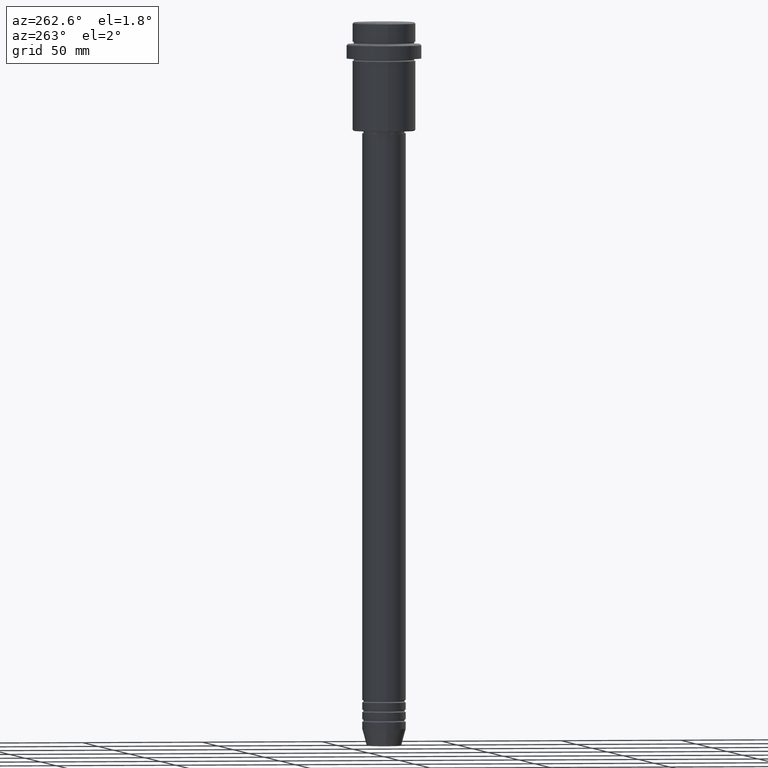
[diagram: clean part render]
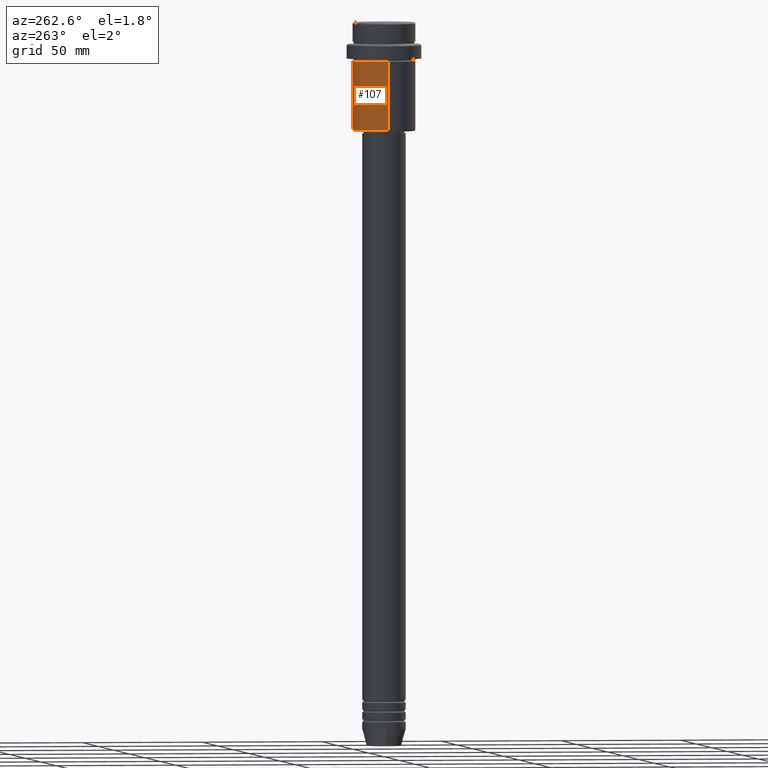
[diagram: same view with one face highlighted and labeled with its STEP entity id]
A machine part, auxiliary view. The second image highlights one B-rep face of the part: STEP entity #107.
In plain terms, the highlighted cylindrical surface (edge-blend (fillet) strip) has radius 13 mm, axis along (-0, -0, 1).
Its self-contained STEP definition (entity closure, byte-faithful):
#16 = CARTESIAN_POINT ( 'NONE',  ( -13.00000000000000000, 1.592040838891559095E-15, -16.00000000000000000 ) ) ;
#28 = EDGE_CURVE ( 'NONE', #1379, #694, #1183, .T. ) ;
#50 = CIRCLE ( 'NONE', #234, 13.00000000000000000 ) ;
#79 = ORIENTED_EDGE ( 'NONE', *, *, #127, .T. ) ;
#107 = ADVANCED_FACE ( 'NONE', ( #1415 ), #769, .T. ) ;
#127 = EDGE_CURVE ( 'NONE', #1379, #299, #50, .T. ) ;
#200 = CARTESIAN_POINT ( 'NONE',  ( 0.000000000000000000, 0.000000000000000000, -44.50000000000002842 ) ) ;
#228 = DIRECTION ( 'NONE',  ( -0.000000000000000000, -0.000000000000000000, 1.000000000000000000 ) ) ;
#234 = AXIS2_PLACEMENT_3D ( 'NONE', #200, #303, #296 ) ;
#296 = DIRECTION ( 'NONE',  ( -1.000000000000000000, 0.000000000000000000, 0.000000000000000000 ) ) ;
#299 = VERTEX_POINT ( 'NONE', #1392 ) ;
#303 = DIRECTION ( 'NONE',  ( -0.000000000000000000, -0.000000000000000000, 1.000000000000000000 ) ) ;
#365 = VERTEX_POINT ( 'NONE', #16 ) ;
#506 = DIRECTION ( 'NONE',  ( -0.000000000000000000, -0.000000000000000000, 1.000000000000000000 ) ) ;
#512 = VECTOR ( 'NONE', #506, 1000.000000000000000 ) ;
#514 = ORIENTED_EDGE ( 'NONE', *, *, #28, .F. ) ;
#523 = EDGE_CURVE ( 'NONE', #299, #365, #815, .T. ) ;
#539 = CARTESIAN_POINT ( 'NONE',  ( 13.00000000000000000, 0.000000000000000000, -16.00000000000000000 ) ) ;
#570 = DIRECTION ( 'NONE',  ( -0.000000000000000000, -0.000000000000000000, 1.000000000000000000 ) ) ;
#578 = CIRCLE ( 'NONE', #779, 13.00000000000000000 ) ;
#660 = DIRECTION ( 'NONE',  ( 1.000000000000000000, 0.000000000000000000, 0.000000000000000000 ) ) ;
#694 = VERTEX_POINT ( 'NONE', #539 ) ;
#732 = CARTESIAN_POINT ( 'NONE',  ( 13.00000000000000000, 0.000000000000000000, 0.000000000000000000 ) ) ;
#767 = DIRECTION ( 'NONE',  ( 1.000000000000000000, 0.000000000000000000, 0.000000000000000000 ) ) ;
#769 = CYLINDRICAL_SURFACE ( 'NONE', #1322, 13.00000000000000000 ) ;
#779 = AXIS2_PLACEMENT_3D ( 'NONE', #783, #570, #767 ) ;
#783 = CARTESIAN_POINT ( 'NONE',  ( 0.000000000000000000, 0.000000000000000000, -16.00000000000000000 ) ) ;
#815 = LINE ( 'NONE', #1028, #512 ) ;
#817 = EDGE_CURVE ( 'NONE', #694, #365, #578, .T. ) ;
#897 = CARTESIAN_POINT ( 'NONE',  ( 13.00000000000000000, 0.000000000000000000, -44.50000000000002842 ) ) ;
#900 = ORIENTED_EDGE ( 'NONE', *, *, #523, .T. ) ;
#977 = CARTESIAN_POINT ( 'NONE',  ( 0.000000000000000000, 0.000000000000000000, 0.000000000000000000 ) ) ;
#1028 = CARTESIAN_POINT ( 'NONE',  ( -13.00000000000000000, 1.592040838891559095E-15, 0.000000000000000000 ) ) ;
#1038 = EDGE_LOOP ( 'NONE', ( #79, #900, #1162, #514 ) ) ;
#1051 = DIRECTION ( 'NONE',  ( -0.000000000000000000, -0.000000000000000000, 1.000000000000000000 ) ) ;
#1162 = ORIENTED_EDGE ( 'NONE', *, *, #817, .F. ) ;
#1170 = VECTOR ( 'NONE', #1051, 1000.000000000000000 ) ;
#1183 = LINE ( 'NONE', #732, #1170 ) ;
#1322 = AXIS2_PLACEMENT_3D ( 'NONE', #977, #228, #660 ) ;
#1379 = VERTEX_POINT ( 'NONE', #897 ) ;
#1392 = CARTESIAN_POINT ( 'NONE',  ( -13.00000000000000000, 1.592040838891559095E-15, -44.50000000000002842 ) ) ;
#1415 = FACE_OUTER_BOUND ( 'NONE', #1038, .T. ) ;